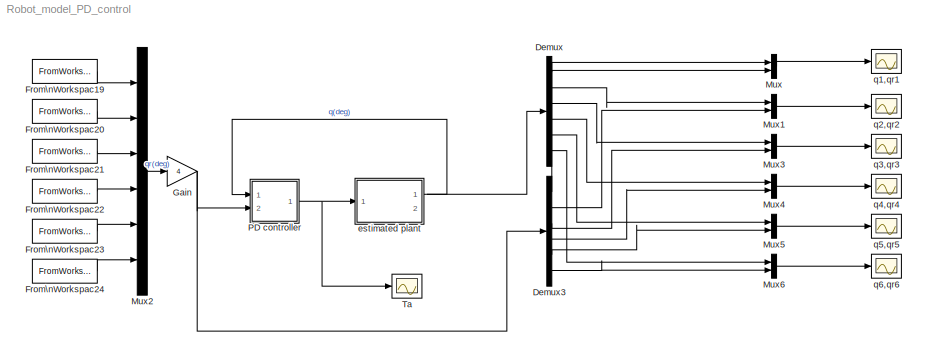
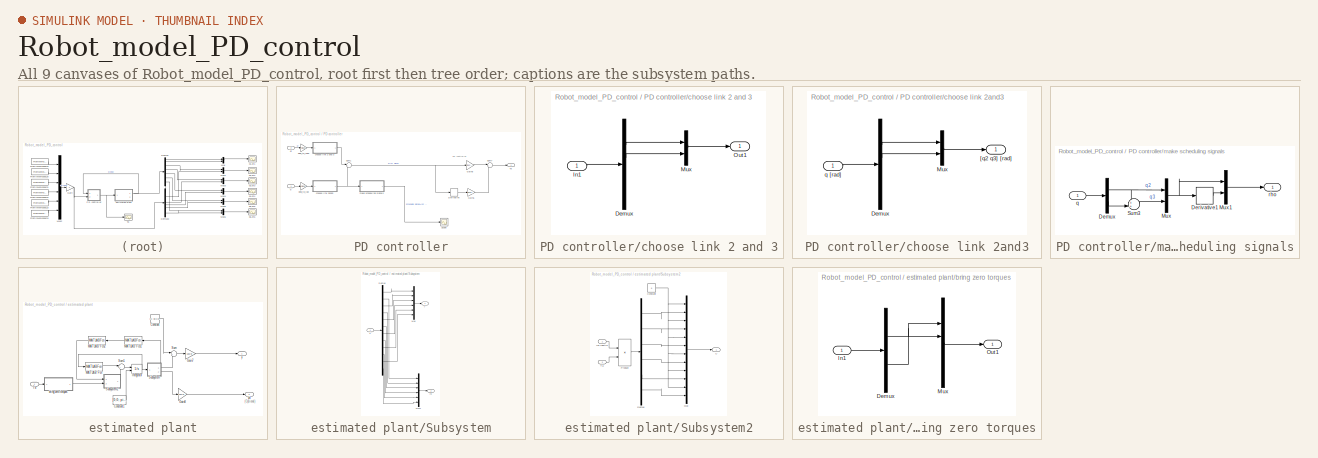
[diagram: thumbnail index - all 9 canvases of the model, root first then tree order]
MODEL Robot_model_PD_control
KIND model
BLOCK [Demux] Demux
  DisplayOption = bar
  Outputs = 6
  Ports = [1, 6]
  SID = 4
BLOCK [Demux] Demux3
  DisplayOption = bar
  Outputs = 6
  Ports = [1, 6]
  SID = 7
BLOCK [FromWorkspace] From\nWorkspac19
  SID = 163
  SampleTime = 0
  VariableName = [time qr(:,1)]
BLOCK [FromWorkspace] From\nWorkspac20
  SID = 164
  SampleTime = 0
  VariableName = [time qr(:,2)]
BLOCK [FromWorkspace] From\nWorkspac21
  SID = 165
  SampleTime = 0
  VariableName = [time qr(:,3)]
BLOCK [FromWorkspace] From\nWorkspac22
  SID = 166
  SampleTime = 0
  VariableName = [time qr(:,4)]
BLOCK [FromWorkspace] From\nWorkspac23
  SID = 167
  SampleTime = 0
  VariableName = [time qr(:,5)]
BLOCK [FromWorkspace] From\nWorkspac24
  SID = 168
  SampleTime = 0
  VariableName = [time qr(:,6)]
BLOCK [Gain] Gain
  Gain = 4
  OutDataTypeStr = Inherit: Inherit via internal rule
  ParamDataTypeStr = Inherit: Inherit via internal rule
  SID = 198
  SaturateOnIntegerOverflow = off
BLOCK [Mux] Mux
  DisplayOption = bar
  Inputs = 2
  Ports = [2, 1]
  SID = 14
BLOCK [Mux] Mux1
  DisplayOption = bar
  Inputs = 2
  Ports = [2, 1]
  SID = 15
BLOCK [Mux] Mux2
  DisplayOption = bar
  Inputs = 6
  Ports = [6, 1]
  SID = 16
BLOCK [Mux] Mux3
  DisplayOption = bar
  Inputs = 2
  Ports = [2, 1]
  SID = 17
BLOCK [Mux] Mux4
  DisplayOption = bar
  Inputs = 2
  Ports = [2, 1]
  SID = 18
BLOCK [Mux] Mux5
  DisplayOption = bar
  Inputs = 2
  Ports = [2, 1]
  SID = 19
BLOCK [Mux] Mux6
  DisplayOption = bar
  Inputs = 2
  Ports = [2, 1]
  SID = 20
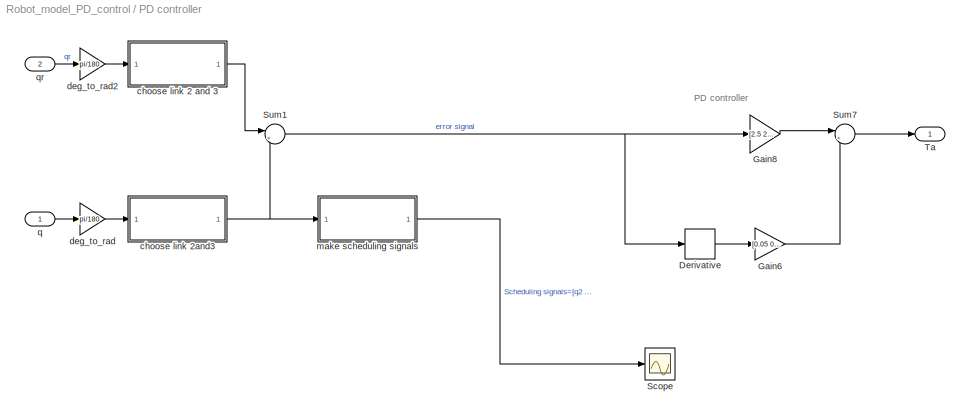
BLOCK [SubSystem] PD controller
  FunctionWithSeparateData = off
  MaskHideContents = off
  MinAlgLoopOccurrences = off
  Opaque = off
  Ports = [2, 1]
  PropExecContextOutsideSubsystem = off
  RTWSystemCode = Auto
  RequestExecContextInheritance = off
  SID = 41
BLOCK [Derivative] PD controller/Derivative
  SID = 52
BLOCK [Gain] PD controller/Gain6
  AttributesFormatString = D gain
  Gain = [0.05 0.05  ]*180/pi
  OutDataTypeStr = Inherit: Inherit via internal rule
  ParamDataTypeStr = Inherit: Inherit via internal rule
  SID = 60
  SaturateOnIntegerOverflow = off
BLOCK [Gain] PD controller/Gain8
  AttributesFormatString = P gain
  Gain = [2.5  2.5]*180/pi
  OutDataTypeStr = Inherit: Inherit via internal rule
  ParamDataTypeStr = Inherit: Inherit via internal rule
  SID = 62
  SaturateOnIntegerOverflow = off
BLOCK [Scope] PD controller/Scope
  DataFormat = StructureWithTime
  Floating = off
  LimitDataPoints = off
  NumInputPorts = 1
  Ports = [1]
  SID = 197
  SampleTime = 0
  SaveName = ScopeData7
BLOCK [Sum] PD controller/Sum1
  IconShape = round
  InputSameDT = off
  Inputs = |+-
  OutDataTypeStr = Inherit: Inherit via internal rule
  Ports = [2, 1]
  SID = 135
  SaturateOnIntegerOverflow = off
BLOCK [Sum] PD controller/Sum7
  IconShape = round
  InputSameDT = off
  Inputs = |++
  OutDataTypeStr = Inherit: Inherit via internal rule
  Ports = [2, 1]
  SID = 75
  SaturateOnIntegerOverflow = off
BLOCK [Outport] PD controller/Ta
  IconDisplay = Port number
  SID = 76
BLOCK [SubSystem] PD controller/choose link 2 and 3
  FunctionWithSeparateData = off
  MaskHideContents = off
  MinAlgLoopOccurrences = off
  Opaque = off
  Ports = [1, 1]
  PropExecContextOutsideSubsystem = off
  RTWSystemCode = Auto
  RequestExecContextInheritance = off
  SID = 185
BLOCK [Demux] PD controller/choose link 2 and 3/Demux
  DisplayOption = bar
  Outputs = 6
  Ports = [1, 6]
  SID = 187
BLOCK [Inport] PD controller/choose link 2 and 3/In1
  IconDisplay = Port number
  SID = 186
BLOCK [Mux] PD controller/choose link 2 and 3/Mux
  DisplayOption = bar
  Inputs = 2
  Ports = [2, 1]
  SID = 188
BLOCK [Outport] PD controller/choose link 2 and 3/Out1
  IconDisplay = Port number
  SID = 189
BLOCK [SubSystem] PD controller/choose link 2and3
  FunctionWithSeparateData = off
  MaskHideContents = off
  MinAlgLoopOccurrences = off
  Opaque = off
  Ports = [1, 1]
  PropExecContextOutsideSubsystem = off
  RTWSystemCode = Auto
  RequestExecContextInheritance = off
  SID = 180
BLOCK [Demux] PD controller/choose link 2and3/Demux
  DisplayOption = bar
  Outputs = 6
  Ports = [1, 6]
  SID = 183
BLOCK [Mux] PD controller/choose link 2and3/Mux
  DisplayOption = bar
  Inputs = 2
  Ports = [2, 1]
  SID = 184
BLOCK [Outport] PD controller/choose link 2and3/[q2 q3] [rad]
  IconDisplay = Port number
  SID = 182
BLOCK [Inport] PD controller/choose link 2and3/q [rad]
  IconDisplay = Port number
  SID = 181
BLOCK [Gain] PD controller/deg_to_rad
  Gain = pi/180
  OutDataTypeStr = Inherit: Inherit via internal rule
  ParamDataTypeStr = Inherit: Inherit via internal rule
  SID = 195
  SaturateOnIntegerOverflow = off
BLOCK [Gain] PD controller/deg_to_rad2
  Gain = pi/180
  OutDataTypeStr = Inherit: Inherit via internal rule
  ParamDataTypeStr = Inherit: Inherit via internal rule
  SID = 196
  SaturateOnIntegerOverflow = off
BLOCK [SubSystem] PD controller/make scheduling signals
  FunctionWithSeparateData = off
  MaskHideContents = off
  MinAlgLoopOccurrences = off
  Opaque = off
  Ports = [1, 1]
  PropExecContextOutsideSubsystem = off
  RTWSystemCode = Auto
  RequestExecContextInheritance = off
  SID = 169
BLOCK [Demux] PD controller/make scheduling signals/Demux
  DisplayOption = bar
  Outputs = 2
  Ports = [1, 2]
  SID = 172
BLOCK [Derivative] PD controller/make scheduling signals/Derivative1
  SID = 173
BLOCK [Mux] PD controller/make scheduling signals/Mux
  DisplayOption = bar
  Inputs = 2
  Ports = [2, 1]
  SID = 174
BLOCK [Mux] PD controller/make scheduling signals/Mux1
  DisplayOption = bar
  Inputs = 2
  Ports = [2, 1]
  SID = 175
BLOCK [Sum] PD controller/make scheduling signals/Sum3
  IconShape = round
  InputSameDT = off
  Inputs = ++|
  OutDataTypeStr = Inherit: Inherit via internal rule
  Ports = [2, 1]
  SID = 176
  SaturateOnIntegerOverflow = off
BLOCK [Inport] PD controller/make scheduling signals/q
  IconDisplay = Port number
  SID = 170
BLOCK [Outport] PD controller/make scheduling signals/rho
  IconDisplay = Port number
  SID = 171
BLOCK [Inport] PD controller/q
  IconDisplay = Port number
  SID = 42
BLOCK [Inport] PD controller/qr
  IconDisplay = Port number
  Port = 2
  SID = 44
BLOCK [Scope] Ta
  DataFormat = StructureWithTime
  Floating = off
  NumInputPorts = 1
  Ports = [1]
  SID = 152
  SampleTime = 0
  SaveName = ScopeData6
  YMax = 225
  YMin = -50
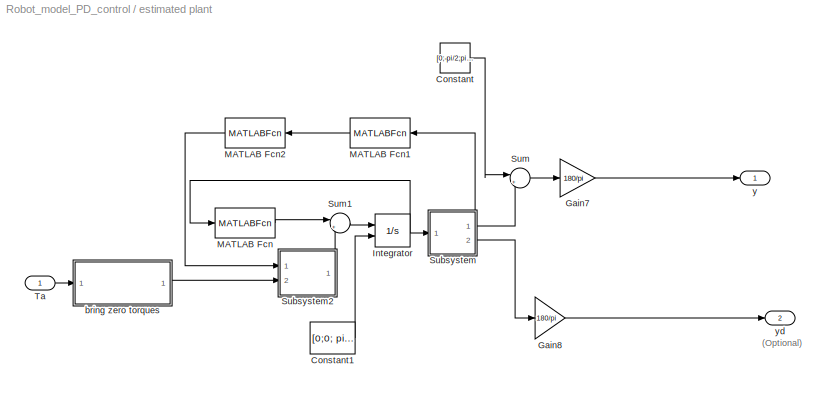
BLOCK [SubSystem] estimated plant
  FunctionWithSeparateData = off
  MaskHideContents = off
  MinAlgLoopOccurrences = off
  Opaque = off
  Ports = [1, 2]
  PropExecContextOutsideSubsystem = off
  RTWSystemCode = Auto
  RequestExecContextInheritance = off
  SID = 83
BLOCK [Constant] estimated plant/Constant
  SID = 87
  Value = [0;-pi/2;pi;0;0;0]
BLOCK [Constant] estimated plant/Constant1
  AttributesFormatString = initial states, ready position
  SID = 155
  Value = [0;0;    pi/2;0;    -pi;0;    0;0;    0;0;    0;0]
BLOCK [Gain] estimated plant/Gain7
  Gain = 180/pi
  OutDataTypeStr = Inherit: Inherit via internal rule
  ParamDataTypeStr = Inherit: Inherit via internal rule
  SID = 90
  SaturateOnIntegerOverflow = off
BLOCK [Gain] estimated plant/Gain8
  Gain = 180/pi
  OutDataTypeStr = Inherit: Inherit via internal rule
  ParamDataTypeStr = Inherit: Inherit via internal rule
  SID = 91
  SaturateOnIntegerOverflow = off
BLOCK [Integrator] estimated plant/Integrator
  InitialConditionSource = external
  Ports = [2, 1]
  SID = 92
BLOCK [MATLABFcn] estimated plant/MATLAB Fcn
  MATLABFcn = Xdsim(u)
  Ports = [1, 1]
  SID = 94
BLOCK [MATLABFcn] estimated plant/MATLAB Fcn1
  MATLABFcn = inert(u)
  Output1D = off
  Ports = [1, 1]
  SID = 95
BLOCK [MATLABFcn] estimated plant/MATLAB Fcn2
  MATLABFcn = inv(u)
  Output1D = off
  Ports = [1, 1]
  SID = 96
BLOCK [SubSystem] estimated plant/Subsystem
  FunctionWithSeparateData = off
  MaskHideContents = off
  MinAlgLoopOccurrences = off
  Opaque = off
  Ports = [1, 2]
  PropExecContextOutsideSubsystem = off
  RTWSystemCode = Auto
  RequestExecContextInheritance = off
  SID = 98
BLOCK [Demux] estimated plant/Subsystem/Demux
  DisplayOption = bar
  Outputs = 12
  Ports = [1, 12]
  SID = 100
BLOCK [Mux] estimated plant/Subsystem/Mux
  DisplayOption = bar
  Inputs = 6
  Ports = [6, 1]
  SID = 101
BLOCK [Mux] estimated plant/Subsystem/Mux1
  DisplayOption = bar
  Inputs = 6
  Ports = [6, 1]
  SID = 102
BLOCK [Inport] estimated plant/Subsystem/X
  IconDisplay = Port number
  SID = 99
BLOCK [Outport] estimated plant/Subsystem/y
  IconDisplay = Port number
  SID = 103
BLOCK [Outport] estimated plant/Subsystem/yd
  IconDisplay = Port number
  Port = 2
  SID = 104
BLOCK [SubSystem] estimated plant/Subsystem2
  FunctionWithSeparateData = off
  MaskHideContents = off
  MinAlgLoopOccurrences = off
  Opaque = off
  Ports = [2, 1]
  PropExecContextOutsideSubsystem = off
  RTWSystemCode = Auto
  RequestExecContextInheritance = off
  SID = 105
BLOCK [Constant] estimated plant/Subsystem2/Constant
  SID = 108
  Value = 0
BLOCK [Demux] estimated plant/Subsystem2/Demux
  DisplayOption = bar
  Outputs = 6
  Ports = [1, 6]
  SID = 109
BLOCK [Mux] estimated plant/Subsystem2/Mux
  DisplayOption = bar
  Inputs = 12
  Ports = [12, 1]
  SID = 110
BLOCK [Product] estimated plant/Subsystem2/Product
  InputSameDT = off
  Multiplication = Matrix(*)
  OutDataTypeStr = Inherit: Inherit via internal rule
  Ports = [2, 1]
  SID = 111
  SaturateOnIntegerOverflow = off
BLOCK [Inport] estimated plant/Subsystem2/Ta
  IconDisplay = Port number
  Port = 2
  SID = 107
BLOCK [Outport] estimated plant/Subsystem2/U 
  IconDisplay = Port number
  SID = 112
BLOCK [Inport] estimated plant/Subsystem2/inv inertia
  IconDisplay = Port number
  SID = 106
BLOCK [Sum] estimated plant/Sum
  IconShape = round
  InputSameDT = off
  Inputs = |++
  OutDataTypeStr = Inherit: Inherit via internal rule
  Ports = [2, 1]
  SID = 113
  SaturateOnIntegerOverflow = off
BLOCK [Sum] estimated plant/Sum1
  IconShape = round
  InputSameDT = off
  Inputs = |++
  OutDataTypeStr = Inherit: Inherit via internal rule
  Ports = [2, 1]
  SID = 114
  SaturateOnIntegerOverflow = off
BLOCK [Inport] estimated plant/Ta
  IconDisplay = Port number
  SID = 84
BLOCK [SubSystem] estimated plant/bring zero torques
  FunctionWithSeparateData = off
  MaskHideContents = off
  MinAlgLoopOccurrences = off
  Opaque = off
  Ports = [1, 1]
  PropExecContextOutsideSubsystem = off
  RTWSystemCode = Auto
  RequestExecContextInheritance = off
  SID = 190
BLOCK [Demux] estimated plant/bring zero torques/Demux
  DisplayOption = bar
  Outputs = 2
  Ports = [1, 2]
  SID = 192
BLOCK [Inport] estimated plant/bring zero torques/In1
  IconDisplay = Port number
  SID = 191
BLOCK [Mux] estimated plant/bring zero torques/Mux
  DisplayOption = bar
  Inputs = 6
  Ports = [6, 1]
  SID = 193
BLOCK [Outport] estimated plant/bring zero torques/Out1
  IconDisplay = Port number
  SID = 194
BLOCK [Outport] estimated plant/y
  IconDisplay = Port number
  SID = 115
BLOCK [Outport] estimated plant/yd
  IconDisplay = Port number
  Port = 2
  SID = 116
BLOCK [Scope] q1,qr1
  DataFormat = StructureWithTime
  Floating = off
  NumInputPorts = 1
  Ports = [1]
  SID = 117
  SampleTime = 0
  YMax = 0
  YMin = -14
BLOCK [Scope] q2,qr2
  DataFormat = StructureWithTime
  Floating = off
  LimitDataPoints = off
  NumInputPorts = 1
  Ports = [1]
  SID = 118
  SampleTime = 0
  SaveName = q2qr2
  SaveToWorkspace = on
  YMax = -10
  YMin = -75
BLOCK [Scope] q3,qr3
  DataFormat = StructureWithTime
  Floating = off
  LimitDataPoints = off
  NumInputPorts = 1
  Ports = [1]
  SID = 119
  SampleTime = 0
  SaveName = q3qr3
  SaveToWorkspace = on
  TimeRange = 3
  YMax = 0.375
  YMin = -0.025
BLOCK [Scope] q4,qr4
  DataFormat = StructureWithTime
  Floating = off
  NumInputPorts = 1
  Ports = [1]
  SID = 120
  SampleTime = 0
  SaveName = ScopeData3
  YMax = 43
  YMin = 29
BLOCK [Scope] q5,qr5
  DataFormat = StructureWithTime
  Floating = off
  NumInputPorts = 1
  Ports = [1]
  SID = 121
  SampleTime = 0
  SaveName = ScopeData4
  YMax = 50
  YMin = -50
BLOCK [Scope] q6,qr6
  DataFormat = StructureWithTime
  Floating = off
  NumInputPorts = 1
  Ports = [1]
  SID = 122
  SampleTime = 0
  SaveName = ScopeData5
  YMax = 45
  YMin = -60
ANNOTATION PD controller: PD controller
ANNOTATION estimated plant: (Optional)
LINE Demux3:1 -> Mux:2
LINE Demux3:2 -> Mux1:2
LINE Demux3:3 -> Mux3:2
LINE Demux3:4 -> Mux4:2
LINE Demux3:5 -> Mux5:2
LINE Demux3:6 -> Mux6:2
LINE Demux:1 -> Mux:1
LINE Demux:2 -> Mux1:1
LINE Demux:3 -> Mux3:1
LINE Demux:4 -> Mux4:1
LINE Demux:5 -> Mux5:1
LINE Demux:6 -> Mux6:1
LINE From\nWorkspac19:1 -> Mux2:1
LINE From\nWorkspac20:1 -> Mux2:2
LINE From\nWorkspac21:1 -> Mux2:3
LINE From\nWorkspac22:1 -> Mux2:4
LINE From\nWorkspac23:1 -> Mux2:5
LINE From\nWorkspac24:1 -> Mux2:6
NET Gain:1 -> Demux3:1, PD controller:2
LINE Mux1:1 -> q2,qr2:1
LINE Mux2:1 -> Gain:1
LINE Mux3:1 -> q3,qr3:1
LINE Mux4:1 -> q4,qr4:1
LINE Mux5:1 -> q5,qr5:1
LINE Mux6:1 -> q6,qr6:1
LINE Mux:1 -> q1,qr1:1
LINE PD controller/Derivative:1 -> PD controller/Gain6:1
LINE PD controller/Gain6:1 -> PD controller/Sum7:2
LINE PD controller/Gain8:1 -> PD controller/Sum7:1
NET PD controller/Sum1:1 -> PD controller/Derivative:1, PD controller/Gain8:1
LINE PD controller/Sum7:1 -> PD controller/Ta:1
LINE PD controller/choose link 2 and 3/Demux:2 -> PD controller/choose link 2 and 3/Mux:1
LINE PD controller/choose link 2 and 3/Demux:3 -> PD controller/choose link 2 and 3/Mux:2
LINE PD controller/choose link 2 and 3/In1:1 -> PD controller/choose link 2 and 3/Demux:1
LINE PD controller/choose link 2 and 3/Mux:1 -> PD controller/choose link 2 and 3/Out1:1
LINE PD controller/choose link 2 and 3:1 -> PD controller/Sum1:1
LINE PD controller/choose link 2and3/Demux:2 -> PD controller/choose link 2and3/Mux:1
LINE PD controller/choose link 2and3/Demux:3 -> PD controller/choose link 2and3/Mux:2
LINE PD controller/choose link 2and3/Mux:1 -> PD controller/choose link 2and3/[q2 q3] [rad]:1
LINE PD controller/choose link 2and3/q [rad]:1 -> PD controller/choose link 2and3/Demux:1
NET PD controller/choose link 2and3:1 -> PD controller/Sum1:2, PD controller/make scheduling signals:1
LINE PD controller/deg_to_rad2:1 -> PD controller/choose link 2 and 3:1
LINE PD controller/deg_to_rad:1 -> PD controller/choose link 2and3:1
NET PD controller/make scheduling signals/Demux:1 -> PD controller/make scheduling signals/Mux:1, PD controller/make scheduling signals/Sum3:1
LINE PD controller/make scheduling signals/Demux:2 -> PD controller/make scheduling signals/Sum3:2
LINE PD controller/make scheduling signals/Derivative1:1 -> PD controller/make scheduling signals/Mux1:2
LINE PD controller/make scheduling signals/Mux1:1 -> PD controller/make scheduling signals/rho:1
NET PD controller/make scheduling signals/Mux:1 -> PD controller/make scheduling signals/Derivative1:1, PD controller/make scheduling signals/Mux1:1
LINE PD controller/make scheduling signals/Sum3:1 -> PD controller/make scheduling signals/Mux:2
LINE PD controller/make scheduling signals/q:1 -> PD controller/make scheduling signals/Demux:1
LINE PD controller/make scheduling signals:1 -> PD controller/Scope:1
LINE PD controller/q:1 -> PD controller/deg_to_rad:1
LINE PD controller/qr:1 -> PD controller/deg_to_rad2:1
NET PD controller:1 -> Ta:1, estimated plant:1
LINE estimated plant/Constant1:1 -> estimated plant/Integrator:2
LINE estimated plant/Constant:1 -> estimated plant/Sum:1
LINE estimated plant/Gain7:1 -> estimated plant/y:1
LINE estimated plant/Gain8:1 -> estimated plant/yd:1
NET estimated plant/Integrator:1 -> estimated plant/MATLAB Fcn:1, estimated plant/Subsystem:1
LINE estimated plant/MATLAB Fcn1:1 -> estimated plant/MATLAB Fcn2:1
LINE estimated plant/MATLAB Fcn2:1 -> estimated plant/Subsystem2:1
LINE estimated plant/MATLAB Fcn:1 -> estimated plant/Sum1:1
LINE estimated plant/Subsystem/Demux:1 -> estimated plant/Subsystem/Mux:1
LINE estimated plant/Subsystem/Demux:10 -> estimated plant/Subsystem/Mux1:5
LINE estimated plant/Subsystem/Demux:11 -> estimated plant/Subsystem/Mux:6
LINE estimated plant/Subsystem/Demux:12 -> estimated plant/Subsystem/Mux1:6
LINE estimated plant/Subsystem/Demux:2 -> estimated plant/Subsystem/Mux1:1
LINE estimated plant/Subsystem/Demux:3 -> estimated plant/Subsystem/Mux:2
LINE estimated plant/Subsystem/Demux:4 -> estimated plant/Subsystem/Mux1:2
LINE estimated plant/Subsystem/Demux:5 -> estimated plant/Subsystem/Mux:3
LINE estimated plant/Subsystem/Demux:6 -> estimated plant/Subsystem/Mux1:3
LINE estimated plant/Subsystem/Demux:7 -> estimated plant/Subsystem/Mux:4
LINE estimated plant/Subsystem/Demux:8 -> estimated plant/Subsystem/Mux1:4
LINE estimated plant/Subsystem/Demux:9 -> estimated plant/Subsystem/Mux:5
LINE estimated plant/Subsystem/Mux1:1 -> estimated plant/Subsystem/yd:1
LINE estimated plant/Subsystem/Mux:1 -> estimated plant/Subsystem/y:1
LINE estimated plant/Subsystem/X:1 -> estimated plant/Subsystem/Demux:1
NET estimated plant/Subsystem2/Constant:1 -> estimated plant/Subsystem2/Mux:1, estimated plant/Subsystem2/Mux:11, estimated plant/Subsystem2/Mux:3, estimated plant/Subsystem2/Mux:5, estimated plant/Subsystem2/Mux:7, estimated plant/Subsystem2/Mux:9
LINE estimated plant/Subsystem2/Demux:1 -> estimated plant/Subsystem2/Mux:2
LINE estimated plant/Subsystem2/Demux:2 -> estimated plant/Subsystem2/Mux:4
LINE estimated plant/Subsystem2/Demux:3 -> estimated plant/Subsystem2/Mux:6
LINE estimated plant/Subsystem2/Demux:4 -> estimated plant/Subsystem2/Mux:8
LINE estimated plant/Subsystem2/Demux:5 -> estimated plant/Subsystem2/Mux:10
LINE estimated plant/Subsystem2/Demux:6 -> estimated plant/Subsystem2/Mux:12
LINE estimated plant/Subsystem2/Mux:1 -> estimated plant/Subsystem2/U :1
LINE estimated plant/Subsystem2/Product:1 -> estimated plant/Subsystem2/Demux:1
LINE estimated plant/Subsystem2/Ta:1 -> estimated plant/Subsystem2/Product:2
LINE estimated plant/Subsystem2/inv inertia:1 -> estimated plant/Subsystem2/Product:1
LINE estimated plant/Subsystem2:1 -> estimated plant/Sum1:2
NET estimated plant/Subsystem:1 -> estimated plant/MATLAB Fcn1:1, estimated plant/Sum:2
LINE estimated plant/Subsystem:2 -> estimated plant/Gain8:1
LINE estimated plant/Sum1:1 -> estimated plant/Integrator:1
LINE estimated plant/Sum:1 -> estimated plant/Gain7:1
LINE estimated plant/Ta:1 -> estimated plant/bring zero torques:1
LINE estimated plant/bring zero torques/Demux:1 -> estimated plant/bring zero torques/Mux:2
LINE estimated plant/bring zero torques/Demux:2 -> estimated plant/bring zero torques/Mux:3
LINE estimated plant/bring zero torques/In1:1 -> estimated plant/bring zero torques/Demux:1
LINE estimated plant/bring zero torques/Mux:1 -> estimated plant/bring zero torques/Out1:1
LINE estimated plant/bring zero torques:1 -> estimated plant/Subsystem2:2
NET estimated plant:1 -> Demux:1, PD controller:1
note: NET lines group one-source signal fan-out (src -> all destinations, sorted); 1:1 wires keep LINE
